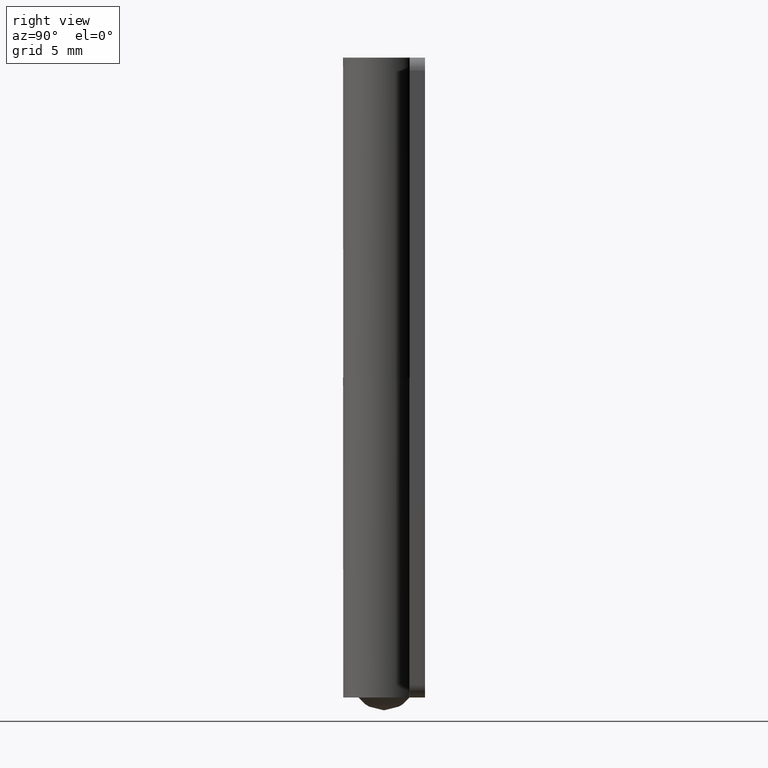
[diagram: clean part render]
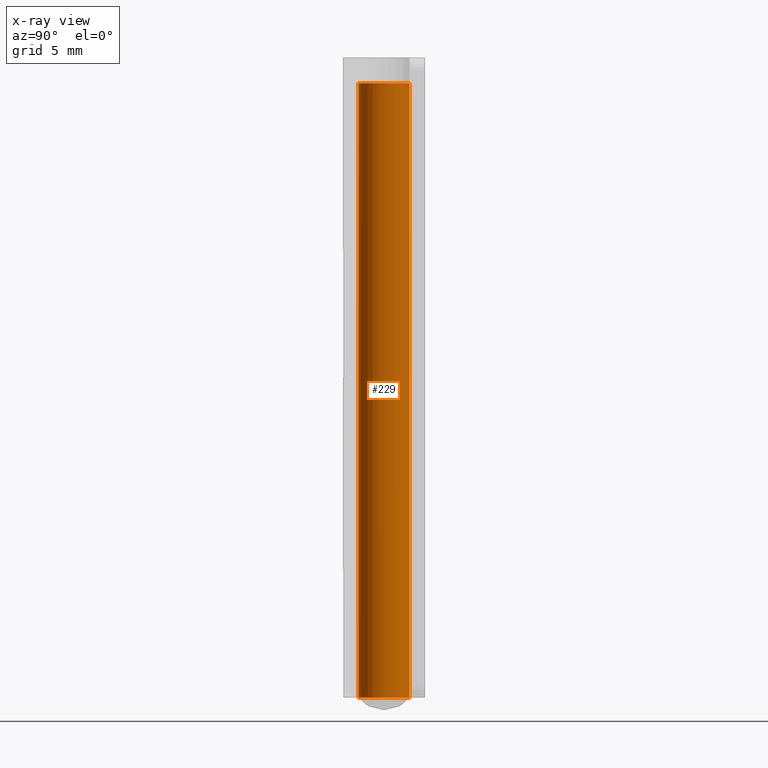
[diagram: x-ray — body ghosted, one internal face saturated and labeled with its STEP entity id]
A machine part, right view, then the same camera in x-ray: the body is ghosted and one INTERNAL B-rep face — a face not visible from any outside direction — is saturated and labeled: STEP entity #229.
In plain terms, the highlighted face is a freeform B-spline surface patch.
Its self-contained STEP definition (entity closure, byte-faithful):
#66=CARTESIAN_POINT('',(-0.236068471325678,1.986019069515340,47.999999977455801));
#67=VERTEX_POINT('',#66);
#85=CARTESIAN_POINT('',(0.122097080164815,-1.996269613716506,47.999999977455801));
#86=VERTEX_POINT('',#85);
#100=CARTESIAN_POINT('',(0.122097080164815,-1.996269613716506,0.000000022544206));
#101=VERTEX_POINT('',#100);
#102=CARTESIAN_POINT('',(0.122097080164815,-1.996269613716506,47.999999977455801));
#103=CARTESIAN_POINT('',(0.122097080164815,-1.996269613716506,0.000000022544206));
#104=QUASI_UNIFORM_CURVE('',1,(#102,#103),.UNSPECIFIED.,.F.,.U.);
#105=EDGE_CURVE('',#86,#101,#104,.T.);
#122=CARTESIAN_POINT('',(-0.236068471325678,1.986019069515340,0.000000022544206));
#123=VERTEX_POINT('',#122);
#139=CARTESIAN_POINT('',(-0.236068471325678,1.986019069515340,47.999999977455801));
#140=CARTESIAN_POINT('',(-0.236068471325678,1.986019069515340,0.000000022544206));
#141=QUASI_UNIFORM_CURVE('',1,(#139,#140),.UNSPECIFIED.,.F.,.U.);
#142=EDGE_CURVE('',#67,#123,#141,.T.);
#147=CARTESIAN_POINT('',(0.122097080101932,-1.996269613720351,49.199999976328598));
#148=CARTESIAN_POINT('',(-1.874172533618419,-2.118366693822284,49.199999976328613));
#149=CARTESIAN_POINT('',(-1.996269613720351,-0.122097080101932,49.199999976328598));
#150=CARTESIAN_POINT('',(-2.111572411316451,1.763086996584275,49.199999976328613));
#151=CARTESIAN_POINT('',(-0.236068471309258,1.986019069517292,49.199999976328606));
#152=CARTESIAN_POINT('',(0.122097080101932,-1.996269613720351,-1.229999976300405));
#153=CARTESIAN_POINT('',(-1.874172533618419,-2.118366693822284,-1.229999976300405));
#154=CARTESIAN_POINT('',(-1.996269613720351,-0.122097080101932,-1.229999976300405));
#155=CARTESIAN_POINT('',(-2.111572411316451,1.763086996584275,-1.229999976300405));
#156=CARTESIAN_POINT('',(-0.236068471309258,1.986019069517292,-1.229999976300406));
#164=(BOUNDED_SURFACE()B_SPLINE_SURFACE(2,1,((#147,#152),(#148,#153),(#149,#154),(#150,#155),(#151,#156)),.UNSPECIFIED.,.F.,.F.,.U.)B_SPLINE_SURFACE_WITH_KNOTS((3,2,3),(2,2),(0.0,3.313708526999109,6.494868712918253),(0.0,50.429999952629032),.UNSPECIFIED.)GEOMETRIC_REPRESENTATION_ITEM()RATIONAL_B_SPLINE_SURFACE(((1.0,1.0),(0.707106781186548,0.707106781186548),(1.0,1.0),(0.718822509939086,0.718822509939086),(0.977505800795127,0.977505800795127)))REPRESENTATION_ITEM('')SURFACE());
#165=CARTESIAN_POINT('',(-2.000000016908155,0.0,47.999999977455801));
#166=VERTEX_POINT('',#165);
#167=CARTESIAN_POINT('',(-2.000000016908155,0.0,47.999999977455801));
#168=CARTESIAN_POINT('',(-2.000000016908155,1.776349066890546,47.999999977455793));
#169=CARTESIAN_POINT('',(-0.236068471325679,1.986019069515340,47.999999977455801));
#177=(BOUNDED_CURVE()B_SPLINE_CURVE(2,(#167,#168,#169),.UNSPECIFIED.,.F.,.U.)B_SPLINE_CURVE_WITH_KNOTS((3,3),(0.0,0.229562473512850),.UNSPECIFIED.)CURVE()GEOMETRIC_REPRESENTATION_ITEM()RATIONAL_B_SPLINE_CURVE((1.0,0.731050832856174,0.956026754182408))REPRESENTATION_ITEM(''));
#178=EDGE_CURVE('',#166,#67,#177,.T.);
#179=ORIENTED_EDGE('',*,*,#178,.T.);
#180=ORIENTED_EDGE('',*,*,#142,.T.);
#181=CARTESIAN_POINT('',(-2.000000016908155,0.0,0.000000022544206));
#182=VERTEX_POINT('',#181);
#183=CARTESIAN_POINT('',(-2.000000016908155,0.0,0.000000022544206));
#184=CARTESIAN_POINT('',(-2.000000016908155,1.776349066890548,0.000000022544206));
#185=CARTESIAN_POINT('',(-0.236068471325679,1.986019069515340,0.000000022544206));
#193=(BOUNDED_CURVE()B_SPLINE_CURVE(2,(#183,#184,#185),.UNSPECIFIED.,.F.,.U.)B_SPLINE_CURVE_WITH_KNOTS((3,3),(0.0,0.229562473512850),.UNSPECIFIED.)CURVE()GEOMETRIC_REPRESENTATION_ITEM()RATIONAL_B_SPLINE_CURVE((1.0,0.731050832856174,0.956026754182408))REPRESENTATION_ITEM(''));
#194=EDGE_CURVE('',#182,#123,#193,.T.);
#195=ORIENTED_EDGE('',*,*,#194,.F.);
#196=CARTESIAN_POINT('',(0.122097080164815,-1.996269613716505,0.000000022544206));
#197=CARTESIAN_POINT('',(0.061105527176828,-2.000000016908155,0.000000022544206));
#198=CARTESIAN_POINT('',(0.0,-2.000000016908155,0.000000022544206));
#199=CARTESIAN_POINT('',(-2.000000016908155,-2.000000016908155,0.000000022544206));
#200=CARTESIAN_POINT('',(-2.000000016908155,0.0,0.000000022544206));
#208=(BOUNDED_CURVE()B_SPLINE_CURVE(2,(#196,#197,#198,#199,#200),.UNSPECIFIED.,.F.,.U.)B_SPLINE_CURVE_WITH_KNOTS((3,2,3),(0.739332962231098,0.750000000000000,1.0),.UNSPECIFIED.)CURVE()GEOMETRIC_REPRESENTATION_ITEM()RATIONAL_B_SPLINE_CURVE((0.976072041649904,0.987502787890646,1.0,0.707106781186548,1.0))REPRESENTATION_ITEM(''));
#209=EDGE_CURVE('',#101,#182,#208,.T.);
#210=ORIENTED_EDGE('',*,*,#209,.F.);
#211=ORIENTED_EDGE('',*,*,#105,.F.);
#212=CARTESIAN_POINT('',(0.122097080164815,-1.996269613716505,47.999999977455801));
#213=CARTESIAN_POINT('',(0.061105527176828,-2.000000016908155,47.999999977455801));
#214=CARTESIAN_POINT('',(0.0,-2.000000016908155,47.999999977455801));
#215=CARTESIAN_POINT('',(-2.000000016908155,-2.000000016908155,47.999999977455786));
#216=CARTESIAN_POINT('',(-2.000000016908155,0.0,47.999999977455801));
#224=(BOUNDED_CURVE()B_SPLINE_CURVE(2,(#212,#213,#214,#215,#216),.UNSPECIFIED.,.F.,.U.)B_SPLINE_CURVE_WITH_KNOTS((3,2,3),(0.739332962231098,0.750000000000000,1.0),.UNSPECIFIED.)CURVE()GEOMETRIC_REPRESENTATION_ITEM()RATIONAL_B_SPLINE_CURVE((0.976072041649904,0.987502787890646,1.0,0.707106781186548,1.0))REPRESENTATION_ITEM(''));
#225=EDGE_CURVE('',#86,#166,#224,.T.);
#226=ORIENTED_EDGE('',*,*,#225,.T.);
#227=EDGE_LOOP('',(#179,#180,#195,#210,#211,#226));
#228=FACE_OUTER_BOUND('',#227,.T.);
#229=ADVANCED_FACE('',(#228),#164,.T.);